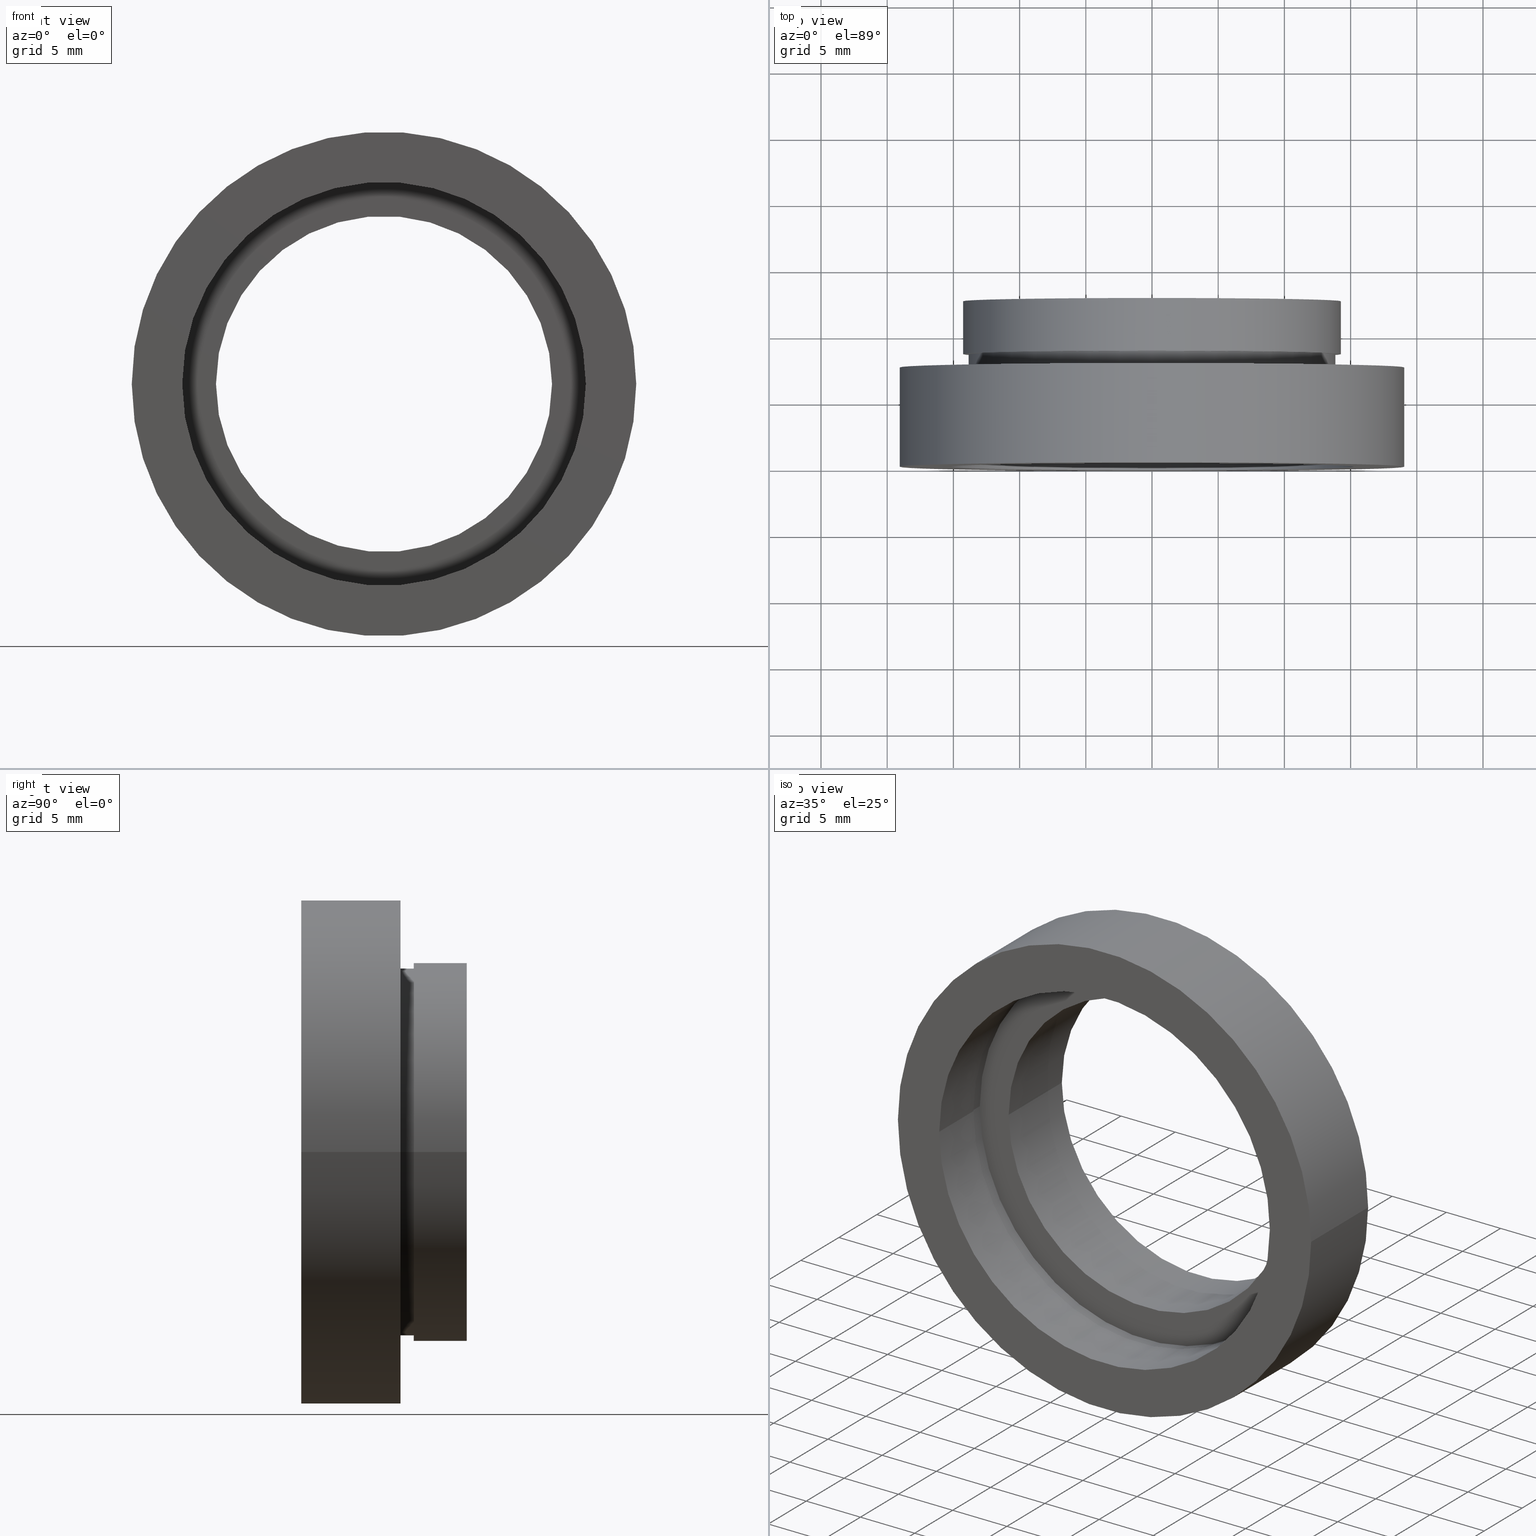
[diagram: canonical four-view strip — front | top / right | iso, engineering-drawing reading convention]
A machine part, canonical four-view strip (front | top / right | iso — engineering-drawing reading convention). The complete STEP part file that produces these views, byte-faithful:
ISO-10303-21;
HEADER;
FILE_DESCRIPTION (( 'STEP AP214' ),
    '1' );
FILE_NAME ('504109.STEP',
    '2019-10-08T05:56:51',
    ( '' ),
    ( '' ),
    'SwSTEP 2.0',
    'SolidWorks 2016',
    '' );
FILE_SCHEMA (( 'AUTOMOTIVE_DESIGN' ));
ENDSEC;

DATA;
#1 = DIRECTION ( 'NONE',  ( -1.224646799147351000E-016, 1.000000000000000000, -0.0000000000000000000 ) ) ;
#2 = DIRECTION ( 'NONE',  ( 1.000000000000000000, 1.224646799147351000E-016, 0.0000000000000000000 ) ) ;
#3 = VERTEX_POINT ( 'NONE', #363 ) ;
#4 = ORIENTED_EDGE ( 'NONE', *, *, #623, .F. ) ;
#5 = CARTESIAN_POINT ( 'NONE',  ( 19.05000000000000400, -1.136494799577910300E-015, 2.332952152375708400E-015 ) ) ;
#6 = AXIS2_PLACEMENT_3D ( 'NONE', #348, #58, #538 ) ;
#7 = EDGE_CURVE ( 'NONE', #541, #36, #599, .T. ) ;
#8 = CIRCLE ( 'NONE', #232, 12.68999999999999600 ) ;
#9 = DIRECTION ( 'NONE',  ( -1.000000000000000000, -1.130113013665672600E-016, 0.0000000000000000000 ) ) ;
#10 = DIRECTION ( 'NONE',  ( -1.224646799147351000E-016, 1.000000000000000000, -0.0000000000000000000 ) ) ;
#11 = EDGE_LOOP ( 'NONE', ( #281, #497, #287, #322 ) ) ;
#12 = CIRCLE ( 'NONE', #345, 15.34999999999999800 ) ;
#13 = CARTESIAN_POINT ( 'NONE',  ( 2.067940818438636500E-015, -3.469446951953614200E-015, 0.0000000000000000000 ) ) ;
#14 = ORIENTED_EDGE ( 'NONE', *, *, #306, .T. ) ;
#15 = DIRECTION ( 'NONE',  ( -1.000000000000000000, -1.224646799147351000E-016, 0.0000000000000000000 ) ) ;
#16 = MECHANICAL_DESIGN_GEOMETRIC_PRESENTATION_REPRESENTATION (  '', ( #262 ), #291 ) ;
#17 = DIRECTION ( 'NONE',  ( -1.224646799147351000E-016, 1.000000000000000000, -0.0000000000000000000 ) ) ;
#18 = MECHANICAL_DESIGN_GEOMETRIC_PRESENTATION_REPRESENTATION (  '', ( #417 ), #117 ) ;
#19 = ORIENTED_EDGE ( 'NONE', *, *, #420, .T. ) ;
#20 = CYLINDRICAL_SURFACE ( 'NONE', #123, 15.23999999999999800 ) ;
#21 =( LENGTH_UNIT ( ) NAMED_UNIT ( * ) SI_UNIT ( .MILLI., .METRE. ) );
#22 = CIRCLE ( 'NONE', #351, 15.24000000000000000 ) ;
#23 = CIRCLE ( 'NONE', #437, 14.26000000000000200 ) ;
#24 = DIRECTION ( 'NONE',  ( -1.224646799147351000E-016, 1.000000000000000000, -0.0000000000000000000 ) ) ;
#25 = MECHANICAL_DESIGN_GEOMETRIC_PRESENTATION_REPRESENTATION (  '', ( #511 ), #570 ) ;
#26 = EDGE_LOOP ( 'NONE', ( #434, #418 ) ) ;
#27 = LINE ( 'NONE', #118, #107 ) ;
#28 = DIRECTION ( 'NONE',  ( -1.224646799147351000E-016, 1.000000000000000000, -0.0000000000000000000 ) ) ;
#29 = ORIENTED_EDGE ( 'NONE', *, *, #463, .T. ) ;
#30 = EDGE_CURVE ( 'NONE', #423, #541, #521, .T. ) ;
#31 = ORIENTED_EDGE ( 'NONE', *, *, #306, .F. ) ;
#32 = CYLINDRICAL_SURFACE ( 'NONE', #153, 19.05000000000000400 ) ;
#33 = DIRECTION ( 'NONE',  ( -1.000000000000000000, -1.130113013665672600E-016, 0.0000000000000000000 ) ) ;
#34 =( NAMED_UNIT ( * ) PLANE_ANGLE_UNIT ( ) SI_UNIT ( $, .RADIAN. ) );
#35 = EDGE_CURVE ( 'NONE', #177, #188, #155, .T. ) ;
#36 = VERTEX_POINT ( 'NONE', #229 ) ;
#37 = LINE ( 'NONE', #116, #48 ) ;
#38 = FILL_AREA_STYLE_COLOUR ( '', #221 ) ;
#39 = ORIENTED_EDGE ( 'NONE', *, *, #354, .F. ) ;
#40 =( NAMED_UNIT ( * ) PLANE_ANGLE_UNIT ( ) SI_UNIT ( $, .RADIAN. ) );
#41 = DIRECTION ( 'NONE',  ( -1.224646799147351000E-016, 1.000000000000000000, 0.0000000000000000000 ) ) ;
#42 = CARTESIAN_POINT ( 'NONE',  ( -12.69000000000000000, 12.49999999999999500, 0.0000000000000000000 ) ) ;
#43 = UNCERTAINTY_MEASURE_WITH_UNIT (LENGTH_MEASURE( 1.000000000000000100E-005 ), #233, 'distance_accuracy_value', 'NONE');
#44 =( LENGTH_UNIT ( ) NAMED_UNIT ( * ) SI_UNIT ( .MILLI., .METRE. ) );
#45 = AXIS2_PLACEMENT_3D ( 'NONE', #249, #41, #380 ) ;
#46 =( NAMED_UNIT ( * ) SI_UNIT ( $, .STERADIAN. ) SOLID_ANGLE_UNIT ( ) );
#47 = DIRECTION ( 'NONE',  ( -1.224646799147351000E-016, 1.000000000000000000, -0.0000000000000000000 ) ) ;
#48 = VECTOR ( 'NONE', #218, 1000.000000000000000 ) ;
#49 = DIRECTION ( 'NONE',  ( -1.000000000000000000, -1.130113013665672600E-016, 0.0000000000000000000 ) ) ;
#50 = CIRCLE ( 'NONE', #572, 15.23999999999999700 ) ;
#51 = CARTESIAN_POINT ( 'NONE',  ( 13.85000000000000100, 7.500000000000000000, 1.696135816819084000E-015 ) ) ;
#52 = STYLED_ITEM ( 'NONE', ( #525 ), #505 ) ;
#53 = DIRECTION ( 'NONE',  ( -1.000000000000000000, -1.216496126210944500E-016, 0.0000000000000000000 ) ) ;
#54 = CARTESIAN_POINT ( 'NONE',  ( 0.0000000000000000000, 16.88601823708207700, 0.0000000000000000000 ) ) ;
#55 = ORIENTED_EDGE ( 'NONE', *, *, #564, .F. ) ;
#56 = CIRCLE ( 'NONE', #594, 12.68999999999999600 ) ;
#57 = ORIENTED_EDGE ( 'NONE', *, *, #597, .T. ) ;
#58 = DIRECTION ( 'NONE',  ( -1.224646799147351000E-016, 1.000000000000000000, -0.0000000000000000000 ) ) ;
#59 = CIRCLE ( 'NONE', #513, 15.24000000000000000 ) ;
#60 = DIRECTION ( 'NONE',  ( 1.000000000000000000, 1.224646799147351000E-016, 0.0000000000000000000 ) ) ;
#61 = EDGE_CURVE ( 'NONE', #255, #68, #8, .T. ) ;
#62 = ORIENTED_EDGE ( 'NONE', *, *, #296, .F. ) ;
#63 = CARTESIAN_POINT ( 'NONE',  ( 13.85000000000000100, 7.499999999999999100, 0.0000000000000000000 ) ) ;
#64 = ADVANCED_FACE ( 'NONE', ( #274, #91 ), #127, .F. ) ;
#65 = CARTESIAN_POINT ( 'NONE',  ( -15.23999999999999800, -5.335808673854176800E-015, 0.0000000000000000000 ) ) ;
#66 = ADVANCED_FACE ( 'NONE', ( #208 ), #75, .T. ) ;
#67 = CARTESIAN_POINT ( 'NONE',  ( -13.84999999999999800, 7.499999999999996400, 0.0000000000000000000 ) ) ;
#68 = VERTEX_POINT ( 'NONE', #607 ) ;
#69 = ADVANCED_FACE ( 'NONE', ( #411 ), #96, .T. ) ;
#70 = EDGE_CURVE ( 'NONE', #474, #518, #22, .T. ) ;
#71 = SURFACE_STYLE_FILL_AREA ( #84 ) ;
#72 = EDGE_LOOP ( 'NONE', ( #324, #223, #158, #565 ) ) ;
#73 = CARTESIAN_POINT ( 'NONE',  ( 13.85000000000000000, 16.88601823708207700, 1.696135816819084000E-015 ) ) ;
#74 = EDGE_CURVE ( 'NONE', #518, #431, #465, .T. ) ;
#75 = CYLINDRICAL_SURFACE ( 'NONE', #402, 14.26000000000000200 ) ;
#76 = FACE_OUTER_BOUND ( 'NONE', #72, .T. ) ;
#77 = LINE ( 'NONE', #567, #282 ) ;
#78 = MECHANICAL_DESIGN_GEOMETRIC_PRESENTATION_REPRESENTATION (  '', ( #605 ), #414 ) ;
#79 = SURFACE_STYLE_USAGE ( .BOTH. , #608 ) ;
#80 = ORIENTED_EDGE ( 'NONE', *, *, #61, .F. ) ;
#81 = AXIS2_PLACEMENT_3D ( 'NONE', #529, #485, #243 ) ;
#82 =( NAMED_UNIT ( * ) SI_UNIT ( $, .STERADIAN. ) SOLID_ANGLE_UNIT ( ) );
#83 = ORIENTED_EDGE ( 'NONE', *, *, #296, .T. ) ;
#84 = FILL_AREA_STYLE ('',( #368 ) ) ;
#85 = CIRCLE ( 'NONE', #483, 13.85000000000000000 ) ;
#86 = ORIENTED_EDGE ( 'NONE', *, *, #564, .T. ) ;
#87 = CARTESIAN_POINT ( 'NONE',  ( 1.149455719078123100E-015, 7.499999999999996400, 0.0000000000000000000 ) ) ;
#88 = MECHANICAL_DESIGN_GEOMETRIC_PRESENTATION_REPRESENTATION (  '', ( #52 ), #331 ) ;
#89 = CARTESIAN_POINT ( 'NONE',  ( 14.26000000000000500, 8.500000000000000000, 1.746346335584126200E-015 ) ) ;
#90 = DIRECTION ( 'NONE',  ( -1.224646799147351000E-016, 1.000000000000000000, -0.0000000000000000000 ) ) ;
#91 = FACE_OUTER_BOUND ( 'NONE', #409, .T. ) ;
#92 = DIRECTION ( 'NONE',  ( -1.224646799147351000E-016, 1.000000000000000000, -0.0000000000000000000 ) ) ;
#93 = CARTESIAN_POINT ( 'NONE',  ( 0.0000000000000000000, 16.88601823708207700, 0.0000000000000000000 ) ) ;
#94 = LINE ( 'NONE', #618, #586 ) ;
#95 = DIRECTION ( 'NONE',  ( -1.000000000000000000, 0.0000000000000000000, 0.0000000000000000000 ) ) ;
#96 = CYLINDRICAL_SURFACE ( 'NONE', #310, 14.26000000000000200 ) ;
#97 = EDGE_LOOP ( 'NONE', ( #80, #29, #57, #134 ) ) ;
#98 = EDGE_CURVE ( 'NONE', #431, #190, #50, .T. ) ;
#99 = DIRECTION ( 'NONE',  ( -1.224646799147351000E-016, 1.000000000000000000, -0.0000000000000000000 ) ) ;
#100 = DIRECTION ( 'NONE',  ( -1.224646799147351000E-016, 1.000000000000000000, -0.0000000000000000000 ) ) ;
#101 = CARTESIAN_POINT ( 'NONE',  ( 0.0000000000000000000, 0.0000000000000000000, 0.0000000000000000000 ) ) ;
#102 = DIRECTION ( 'NONE',  ( -1.224646799147351000E-016, 1.000000000000000000, -0.0000000000000000000 ) ) ;
#103 = CARTESIAN_POINT ( 'NONE',  ( -13.85000000000000000, 16.88601823708207700, 0.0000000000000000000 ) ) ;
#104 = EDGE_LOOP ( 'NONE', ( #83, #86, #553, #425 ) ) ;
#105 = ORIENTED_EDGE ( 'NONE', *, *, #588, .T. ) ;
#106 = CARTESIAN_POINT ( 'NONE',  ( 1.394385078907593200E-015, 5.499999999999996400, 0.0000000000000000000 ) ) ;
#107 = VECTOR ( 'NONE', #359, 1000.000000000000000 ) ;
#108 = SURFACE_STYLE_USAGE ( .BOTH. , #397 ) ;
#109 = EDGE_CURVE ( 'NONE', #318, #150, #602, .T. ) ;
#110 = FACE_OUTER_BOUND ( 'NONE', #396, .T. ) ;
#111 =( NAMED_UNIT ( * ) SI_UNIT ( $, .STERADIAN. ) SOLID_ANGLE_UNIT ( ) );
#112 = FACE_BOUND ( 'NONE', #367, .T. ) ;
#113 = LINE ( 'NONE', #193, #579 ) ;
#114 = STYLED_ITEM ( 'NONE', ( #394 ), #69 ) ;
#115 = UNCERTAINTY_MEASURE_WITH_UNIT (LENGTH_MEASURE( 1.000000000000000100E-005 ), #21, 'distance_accuracy_value', 'NONE');
#116 = CARTESIAN_POINT ( 'NONE',  ( -15.23999999999999800, 16.88601823708207300, 0.0000000000000000000 ) ) ;
#117 =( GEOMETRIC_REPRESENTATION_CONTEXT ( 3 ) GLOBAL_UNCERTAINTY_ASSIGNED_CONTEXT ( ( #250 ) ) GLOBAL_UNIT_ASSIGNED_CONTEXT ( ( #495, #595, #458 ) ) REPRESENTATION_CONTEXT ( 'NONE', 'WORKASPACE' ) );
#118 = CARTESIAN_POINT ( 'NONE',  ( -12.68999999999999800, 16.88601823708207700, 0.0000000000000000000 ) ) ;
#119 = VERTEX_POINT ( 'NONE', #372 ) ;
#120 = PRESENTATION_STYLE_ASSIGNMENT (( #169 ) ) ;
#121 =( NAMED_UNIT ( * ) PLANE_ANGLE_UNIT ( ) SI_UNIT ( $, .RADIAN. ) );
#122 = DIRECTION ( 'NONE',  ( -1.000000000000000000, -2.276539994720219300E-016, 0.0000000000000000000 ) ) ;
#123 = AXIS2_PLACEMENT_3D ( 'NONE', #549, #24, #122 ) ;
#124 = VERTEX_POINT ( 'NONE', #563 ) ;
#125 = LINE ( 'NONE', #266, #230 ) ;
#126 = CIRCLE ( 'NONE', #181, 13.85000000000000000 ) ;
#127 = PLANE ( 'NONE',  #163 ) ;
#128 = EDGE_CURVE ( 'NONE', #326, #589, #569, .T. ) ;
#129 =( NAMED_UNIT ( * ) PLANE_ANGLE_UNIT ( ) SI_UNIT ( $, .RADIAN. ) );
#130 = UNCERTAINTY_MEASURE_WITH_UNIT (LENGTH_MEASURE( 1.000000000000000100E-005 ), #286, 'distance_accuracy_value', 'NONE');
#131 = DIRECTION ( 'NONE',  ( -1.000000000000000000, -1.224646799147350700E-016, 0.0000000000000000000 ) ) ;
#132 = ORIENTED_EDGE ( 'NONE', *, *, #346, .F. ) ;
#133 = CIRCLE ( 'NONE', #186, 19.05000000000000100 ) ;
#134 = ORIENTED_EDGE ( 'NONE', *, *, #430, .F. ) ;
#135 = SURFACE_STYLE_FILL_AREA ( #189 ) ;
#136 = DIRECTION ( 'NONE',  ( -1.000000000000000000, -1.365923996832131400E-016, 0.0000000000000000000 ) ) ;
#137 =( NAMED_UNIT ( * ) PLANE_ANGLE_UNIT ( ) SI_UNIT ( $, .RADIAN. ) );
#138 = ORIENTED_EDGE ( 'NONE', *, *, #386, .T. ) ;
#139 = CARTESIAN_POINT ( 'NONE',  ( 13.85000000000000100, 8.500000000000000000, 1.696135816819084000E-015 ) ) ;
#140 = CYLINDRICAL_SURFACE ( 'NONE', #267, 12.68999999999999800 ) ;
#141 = EDGE_CURVE ( 'NONE', #150, #318, #228, .T. ) ;
#142 = CIRCLE ( 'NONE', #373, 13.85000000000000000 ) ;
#143 =( NAMED_UNIT ( * ) SI_UNIT ( $, .STERADIAN. ) SOLID_ANGLE_UNIT ( ) );
#144 = ORIENTED_EDGE ( 'NONE', *, *, #277, .F. ) ;
#145 = DIRECTION ( 'NONE',  ( -1.224646799147351000E-016, 1.000000000000000000, -0.0000000000000000000 ) ) ;
#146 = DIRECTION ( 'NONE',  ( -1.000000000000000000, -1.224646799147350700E-016, 0.0000000000000000000 ) ) ;
#147 = PRESENTATION_LAYER_ASSIGNMENT (  '', '', ( #262 ) ) ;
#148 = CARTESIAN_POINT ( 'NONE',  ( 5.371323195044474300E-016, 12.49999999999999600, 0.0000000000000000000 ) ) ;
#149 = DIRECTION ( 'NONE',  ( -1.224646799147351000E-016, 1.000000000000000000, -0.0000000000000000000 ) ) ;
#150 = VERTEX_POINT ( 'NONE', #280 ) ;
#151 = CIRCLE ( 'NONE', #522, 12.69000000000000000 ) ;
#152 = FILL_AREA_STYLE_COLOUR ( '', #222 ) ;
#153 = AXIS2_PLACEMENT_3D ( 'NONE', #432, #201, #571 ) ;
#154 = PRESENTATION_STYLE_ASSIGNMENT (( #108 ) ) ;
#155 = LINE ( 'NONE', #73, #300 ) ;
#156 = DIRECTION ( 'NONE',  ( -1.000000000000000000, -1.252507924893001600E-016, 0.0000000000000000000 ) ) ;
#157 = DIRECTION ( 'NONE',  ( -1.224646799147351000E-016, 1.000000000000000000, -0.0000000000000000000 ) ) ;
#158 = ORIENTED_EDGE ( 'NONE', *, *, #346, .T. ) ;
#159 = FACE_OUTER_BOUND ( 'NONE', #235, .T. ) ;
#160 = PRODUCT_DEFINITION ( 'δ֪', '', #227, #610 ) ;
#161 = FACE_OUTER_BOUND ( 'NONE', #270, .T. ) ;
#162 = SURFACE_SIDE_STYLE ('',( #360 ) ) ;
#163 = AXIS2_PLACEMENT_3D ( 'NONE', #415, #376, #523 ) ;
#164 = CLOSED_SHELL ( 'NONE', ( #314, #546, #69, #268, #404, #505, #456, #407, #64, #172, #508, #499, #271, #66, #225, #213, #462, #276 ) ) ;
#165 = CARTESIAN_POINT ( 'NONE',  ( 15.35000000000000000, 4.499999999999999100, 1.879832836691187100E-015 ) ) ;
#166 = EDGE_CURVE ( 'NONE', #518, #474, #59, .T. ) ;
#167 = EDGE_LOOP ( 'NONE', ( #62, #31 ) ) ;
#168 = COLOUR_RGB ( '',1.000000000000000000, 1.000000000000000000, 1.000000000000000000 ) ;
#169 = SURFACE_STYLE_USAGE ( .BOTH. , #455 ) ;
#170 = CARTESIAN_POINT ( 'NONE',  ( 5.371323195044474300E-016, 12.49999999999999600, 0.0000000000000000000 ) ) ;
#171 = SHAPE_DEFINITION_REPRESENTATION ( #294, #421 ) ;
#172 = ADVANCED_FACE ( 'NONE', ( #526 ), #490, .F. ) ;
#173 = PLANE ( 'NONE',  #385 ) ;
#174 = ORIENTED_EDGE ( 'NONE', *, *, #74, .T. ) ;
#175 = FACE_BOUND ( 'NONE', #388, .T. ) ;
#176 = DIRECTION ( 'NONE',  ( -1.224646799147351000E-016, 1.000000000000000000, 0.0000000000000000000 ) ) ;
#177 = VERTEX_POINT ( 'NONE', #51 ) ;
#178 = EDGE_CURVE ( 'NONE', #589, #326, #216, .T. ) ;
#179 = CARTESIAN_POINT ( 'NONE',  ( -14.26000000000000200, 16.88601823708207300, 0.0000000000000000000 ) ) ;
#180 = DIRECTION ( 'NONE',  ( -1.224646799147351000E-016, 1.000000000000000000, -0.0000000000000000000 ) ) ;
#181 = AXIS2_PLACEMENT_3D ( 'NONE', #240, #435, #335 ) ;
#182 = UNCERTAINTY_MEASURE_WITH_UNIT (LENGTH_MEASURE( 1.000000000000000100E-005 ), #543, 'distance_accuracy_value', 'NONE');
#183 = DIRECTION ( 'NONE',  ( -1.224646799147351000E-016, 1.000000000000000000, -0.0000000000000000000 ) ) ;
#184 = LINE ( 'NONE', #103, #562 ) ;
#185 = DIRECTION ( 'NONE',  ( -1.000000000000000000, -1.130113013665672600E-016, 0.0000000000000000000 ) ) ;
#186 = AXIS2_PLACEMENT_3D ( 'NONE', #13, #540, #261 ) ;
#187 = CARTESIAN_POINT ( 'NONE',  ( 15.23999999999999800, 16.88601823708208000, 1.866361721900565800E-015 ) ) ;
#188 = VERTEX_POINT ( 'NONE', #139 ) ;
#189 = FILL_AREA_STYLE ('',( #506 ) ) ;
#190 = VERTEX_POINT ( 'NONE', #293 ) ;
#191 = AXIS2_PLACEMENT_3D ( 'NONE', #461, #176, #507 ) ;
#192 = APPLICATION_PROTOCOL_DEFINITION ( 'draft international standard', 'automotive_design', 1998, #574 ) ;
#193 = CARTESIAN_POINT ( 'NONE',  ( 15.34999999999999800, 16.88601823708208000, 1.879832836691187100E-015 ) ) ;
#194 = AXIS2_PLACEMENT_3D ( 'NONE', #620, #47, #202 ) ;
#195 = APPLICATION_PROTOCOL_DEFINITION ( 'draft international standard', 'automotive_design', 1998, #248 ) ;
#196 = CARTESIAN_POINT ( 'NONE',  ( 12.69000000000000000, 12.50000000000000000, 0.0000000000000000000 ) ) ;
#197 = VERTEX_POINT ( 'NONE', #384 ) ;
#198 = AXIS2_PLACEMENT_3D ( 'NONE', #321, #556, #410 ) ;
#199 = ORIENTED_EDGE ( 'NONE', *, *, #559, .T. ) ;
#200 = CYLINDRICAL_SURFACE ( 'NONE', #247, 12.68999999999999800 ) ;
#201 = DIRECTION ( 'NONE',  ( -1.224646799147351000E-016, 1.000000000000000000, -0.0000000000000000000 ) ) ;
#202 = DIRECTION ( 'NONE',  ( -1.000000000000000000, -1.365923996832131400E-016, 0.0000000000000000000 ) ) ;
#203 = DIRECTION ( 'NONE',  ( -1.224646799147351000E-016, 1.000000000000000000, -0.0000000000000000000 ) ) ;
#204 = EDGE_LOOP ( 'NONE', ( #539, #290 ) ) ;
#205 = DIRECTION ( 'NONE',  ( -1.224646799147351000E-016, 1.000000000000000000, -0.0000000000000000000 ) ) ;
#206 = FACE_OUTER_BOUND ( 'NONE', #305, .T. ) ;
#207 = EDGE_LOOP ( 'NONE', ( #220, #174, #440, #568 ) ) ;
#208 = FACE_OUTER_BOUND ( 'NONE', #352, .T. ) ;
#209 = FILL_AREA_STYLE ('',( #350 ) ) ;
#210 = EDGE_CURVE ( 'NONE', #318, #480, #113, .T. ) ;
#211 = CARTESIAN_POINT ( 'NONE',  ( 1.026991039163387700E-015, 8.499999999999998200, 0.0000000000000000000 ) ) ;
#212 = ORIENTED_EDGE ( 'NONE', *, *, #327, .F. ) ;
#213 = ADVANCED_FACE ( 'NONE', ( #76 ), #366, .T. ) ;
#214 = CARTESIAN_POINT ( 'NONE',  ( 19.05000000000000400, -4.336808689942023700E-016, 0.0000000000000000000 ) ) ;
#215 = PRESENTATION_LAYER_ASSIGNMENT (  '', '', ( #52 ) ) ;
#216 = CIRCLE ( 'NONE', #194, 19.05000000000000400 ) ;
#217 = ORIENTED_EDGE ( 'NONE', *, *, #623, .T. ) ;
#218 = DIRECTION ( 'NONE',  ( -1.224646799147351000E-016, 1.000000000000000000, -0.0000000000000000000 ) ) ;
#219 = STYLED_ITEM ( 'NONE', ( #395 ), #407 ) ;
#220 = ORIENTED_EDGE ( 'NONE', *, *, #166, .F. ) ;
#221 = COLOUR_RGB ( '',1.000000000000000000, 1.000000000000000000, 1.000000000000000000 ) ;
#222 = COLOUR_RGB ( '',1.000000000000000000, 1.000000000000000000, 1.000000000000000000 ) ;
#223 = ORIENTED_EDGE ( 'NONE', *, *, #241, .T. ) ;
#224 = DIRECTION ( 'NONE',  ( -1.000000000000000000, -1.252507924893001600E-016, 0.0000000000000000000 ) ) ;
#225 = ADVANCED_FACE ( 'NONE', ( #244, #112 ), #482, .F. ) ;
#226 = CARTESIAN_POINT ( 'NONE',  ( 0.0000000000000000000, 16.88601823708207700, 0.0000000000000000000 ) ) ;
#227 = PRODUCT_DEFINITION_FORMATION_WITH_SPECIFIED_SOURCE ( '�κ�', '', #364, .NOT_KNOWN. ) ;
#228 = CIRCLE ( 'NONE', #479, 15.34999999999999800 ) ;
#229 = CARTESIAN_POINT ( 'NONE',  ( 14.26000000000000200, 12.50000000000000000, 1.746346335584125800E-015 ) ) ;
#230 = VECTOR ( 'NONE', #590, 1000.000000000000000 ) ;
#231 = ORIENTED_EDGE ( 'NONE', *, *, #354, .T. ) ;
#232 = AXIS2_PLACEMENT_3D ( 'NONE', #464, #180, #614 ) ;
#233 =( LENGTH_UNIT ( ) NAMED_UNIT ( * ) SI_UNIT ( .MILLI., .METRE. ) );
#234 = DIRECTION ( 'NONE',  ( -1.224646799147351000E-016, 1.000000000000000000, -0.0000000000000000000 ) ) ;
#235 = EDGE_LOOP ( 'NONE', ( #452, #333, #413, #132 ) ) ;
#236 = ORIENTED_EDGE ( 'NONE', *, *, #74, .F. ) ;
#237 = CARTESIAN_POINT ( 'NONE',  ( 1.516849758822328300E-015, 4.499999999999997300, 0.0000000000000000000 ) ) ;
#238 = CARTESIAN_POINT ( 'NONE',  ( 2.067940818438636500E-015, -3.469446951953614200E-015, 0.0000000000000000000 ) ) ;
#239 = PRESENTATION_STYLE_ASSIGNMENT (( #422 ) ) ;
#240 = CARTESIAN_POINT ( 'NONE',  ( 1.149455719078122700E-015, 7.499999999999998200, 0.0000000000000000000 ) ) ;
#241 = EDGE_CURVE ( 'NONE', #177, #443, #126, .T. ) ;
#242 = FACE_BOUND ( 'NONE', #308, .T. ) ;
#243 = DIRECTION ( 'NONE',  ( -1.000000000000000000, -1.216496126210944500E-016, 0.0000000000000000000 ) ) ;
#244 = FACE_OUTER_BOUND ( 'NONE', #204, .T. ) ;
#245 =( LENGTH_UNIT ( ) NAMED_UNIT ( * ) SI_UNIT ( .MILLI., .METRE. ) );
#246 = SURFACE_STYLE_USAGE ( .BOTH. , #477 ) ;
#247 = AXIS2_PLACEMENT_3D ( 'NONE', #429, #1, #341 ) ;
#248 = APPLICATION_CONTEXT ( 'automotive_design' ) ;
#249 = CARTESIAN_POINT ( 'NONE',  ( 14.26000000000000300, 8.500000000000000000, 0.0000000000000000000 ) ) ;
#250 = UNCERTAINTY_MEASURE_WITH_UNIT (LENGTH_MEASURE( 1.000000000000000100E-005 ), #495, 'distance_accuracy_value', 'NONE');
#251 =( LENGTH_UNIT ( ) NAMED_UNIT ( * ) SI_UNIT ( .MILLI., .METRE. ) );
#252 = AXIS2_PLACEMENT_3D ( 'NONE', #446, #535, #390 ) ;
#253 = ORIENTED_EDGE ( 'NONE', *, *, #141, .F. ) ;
#254 = FACE_OUTER_BOUND ( 'NONE', #297, .T. ) ;
#255 = VERTEX_POINT ( 'NONE', #338 ) ;
#256 = DIRECTION ( 'NONE',  ( -1.224646799147351000E-016, 1.000000000000000000, -0.0000000000000000000 ) ) ;
#257 = CARTESIAN_POINT ( 'NONE',  ( 0.0000000000000000000, 16.88601823708207700, 0.0000000000000000000 ) ) ;
#258 = PRODUCT_RELATED_PRODUCT_CATEGORY ( 'part', '', ( #364 ) ) ;
#259 = ORIENTED_EDGE ( 'NONE', *, *, #61, .T. ) ;
#260 = VECTOR ( 'NONE', #307, 1000.000000000000000 ) ;
#261 = DIRECTION ( 'NONE',  ( -1.000000000000000000, -1.224646799147351200E-016, 0.0000000000000000000 ) ) ;
#262 = STYLED_ITEM ( 'NONE', ( #492 ), #268 ) ;
#263 = COLOUR_RGB ( '',1.000000000000000000, 1.000000000000000000, 1.000000000000000000 ) ;
#264 = ORIENTED_EDGE ( 'NONE', *, *, #597, .F. ) ;
#265 = CARTESIAN_POINT ( 'NONE',  ( 15.23999999999999800, 4.499999999999999100, 1.866361721900565400E-015 ) ) ;
#266 = CARTESIAN_POINT ( 'NONE',  ( 12.68999999999999800, 16.88601823708207700, 1.554076788117991100E-015 ) ) ;
#267 = AXIS2_PLACEMENT_3D ( 'NONE', #591, #17, #405 ) ;
#268 = ADVANCED_FACE ( 'NONE', ( #604 ), #200, .F. ) ;
#269 = DIRECTION ( 'NONE',  ( -1.000000000000000000, -1.367000375080226200E-016, 0.0000000000000000000 ) ) ;
#270 = EDGE_LOOP ( 'NONE', ( #55, #14, #105, #612 ) ) ;
#271 = ADVANCED_FACE ( 'NONE', ( #566, #500 ), #288, .F. ) ;
#272 = ORIENTED_EDGE ( 'NONE', *, *, #438, .T. ) ;
#273 = FILL_AREA_STYLE ('',( #309 ) ) ;
#274 = FACE_BOUND ( 'NONE', #26, .T. ) ;
#275 = LINE ( 'NONE', #494, #260 ) ;
#276 = ADVANCED_FACE ( 'NONE', ( #161 ), #32, .T. ) ;
#277 = EDGE_CURVE ( 'NONE', #36, #541, #441, .T. ) ;
#278 = DIRECTION ( 'NONE',  ( -1.000000000000000000, -2.432992252421889000E-016, 0.0000000000000000000 ) ) ;
#279 = AXIS2_PLACEMENT_3D ( 'NONE', #196, #383, #2 ) ;
#280 = CARTESIAN_POINT ( 'NONE',  ( -15.34999999999999600, 4.499999999999995600, 0.0000000000000000000 ) ) ;
#281 = ORIENTED_EDGE ( 'NONE', *, *, #473, .T. ) ;
#282 = VECTOR ( 'NONE', #616, 1000.000000000000000 ) ;
#283 = PRESENTATION_LAYER_ASSIGNMENT (  '', '', ( #219 ) ) ;
#284 = CARTESIAN_POINT ( 'NONE',  ( 0.0000000000000000000, 16.88601823708207700, 0.0000000000000000000 ) ) ;
#285 =( NAMED_UNIT ( * ) SI_UNIT ( $, .STERADIAN. ) SOLID_ANGLE_UNIT ( ) );
#286 =( LENGTH_UNIT ( ) NAMED_UNIT ( * ) SI_UNIT ( .MILLI., .METRE. ) );
#287 = ORIENTED_EDGE ( 'NONE', *, *, #7, .F. ) ;
#288 = PLANE ( 'NONE',  #279 ) ;
#289 = FACE_OUTER_BOUND ( 'NONE', #167, .T. ) ;
#290 = ORIENTED_EDGE ( 'NONE', *, *, #336, .F. ) ;
#291 =( GEOMETRIC_REPRESENTATION_CONTEXT ( 3 ) GLOBAL_UNCERTAINTY_ASSIGNED_CONTEXT ( ( #624 ) ) GLOBAL_UNIT_ASSIGNED_CONTEXT ( ( #44, #387, #575 ) ) REPRESENTATION_CONTEXT ( 'NONE', 'WORKASPACE' ) );
#292 = DIRECTION ( 'NONE',  ( -1.224646799147351000E-016, 1.000000000000000000, -0.0000000000000000000 ) ) ;
#293 = CARTESIAN_POINT ( 'NONE',  ( -15.23999999999999500, 4.499999999999995600, 0.0000000000000000000 ) ) ;
#294 = PRODUCT_DEFINITION_SHAPE ( 'NONE', 'NONE',  #160 ) ;
#295 = MANIFOLD_SOLID_BREP ( '��ת1', #164 ) ;
#296 = EDGE_CURVE ( 'NONE', #119, #347, #133, .T. ) ;
#297 = EDGE_LOOP ( 'NONE', ( #502, #573, #375, #357 ) ) ;
#298 = FACE_OUTER_BOUND ( 'NONE', #524, .T. ) ;
#299 = DIRECTION ( 'NONE',  ( -1.000000000000000000, -1.821231995776175000E-016, 0.0000000000000000000 ) ) ;
#300 = VECTOR ( 'NONE', #603, 1000.000000000000000 ) ;
#301 = AXIS2_PLACEMENT_3D ( 'NONE', #503, #99, #533 ) ;
#302 = ORIENTED_EDGE ( 'NONE', *, *, #398, .F. ) ;
#303 = FACE_BOUND ( 'NONE', #378, .T. ) ;
#304 = CARTESIAN_POINT ( 'NONE',  ( 1.026991039163387700E-015, 8.499999999999998200, 0.0000000000000000000 ) ) ;
#305 = EDGE_LOOP ( 'NONE', ( #236, #349, #389, #199 ) ) ;
#306 = EDGE_CURVE ( 'NONE', #347, #119, #374, .T. ) ;
#307 = DIRECTION ( 'NONE',  ( -1.224646799147351000E-016, 1.000000000000000000, -0.0000000000000000000 ) ) ;
#308 = EDGE_LOOP ( 'NONE', ( #466, #486 ) ) ;
#309 = FILL_AREA_STYLE_COLOUR ( '', #168 ) ;
#310 = AXIS2_PLACEMENT_3D ( 'NONE', #284, #328, #424 ) ;
#311 = EDGE_LOOP ( 'NONE', ( #516, #264 ) ) ;
#312 = FACE_OUTER_BOUND ( 'NONE', #104, .T. ) ;
#313 = FILL_AREA_STYLE ('',( #552 ) ) ;
#314 = ADVANCED_FACE ( 'NONE', ( #312 ), #412, .T. ) ;
#315 = MECHANICAL_DESIGN_GEOMETRIC_PRESENTATION_REPRESENTATION (  '', ( #406 ), #453 ) ;
#316 = SURFACE_SIDE_STYLE ('',( #449 ) ) ;
#317 = SURFACE_STYLE_USAGE ( .BOTH. , #316 ) ;
#318 = VERTEX_POINT ( 'NONE', #165 ) ;
#319 = DIRECTION ( 'NONE',  ( -1.000000000000000000, 0.0000000000000000000, 0.0000000000000000000 ) ) ;
#320 = SURFACE_STYLE_FILL_AREA ( #580 ) ;
#321 = CARTESIAN_POINT ( 'NONE',  ( 5.371323195044472300E-016, 12.49999999999999800, 0.0000000000000000000 ) ) ;
#322 = ORIENTED_EDGE ( 'NONE', *, *, #30, .F. ) ;
#323 = CARTESIAN_POINT ( 'NONE',  ( 15.24000000000000400, -1.603085230053050900E-015, 1.866361721900566200E-015 ) ) ;
#324 = ORIENTED_EDGE ( 'NONE', *, *, #35, .F. ) ;
#325 = AXIS2_PLACEMENT_3D ( 'NONE', #211, #545, #401 ) ;
#326 = VERTEX_POINT ( 'NONE', #439 ) ;
#327 = EDGE_CURVE ( 'NONE', #480, #3, #12, .T. ) ;
#328 = DIRECTION ( 'NONE',  ( -1.224646799147351000E-016, 1.000000000000000000, -0.0000000000000000000 ) ) ;
#329 = CARTESIAN_POINT ( 'NONE',  ( 0.0000000000000000000, 16.88601823708207700, 0.0000000000000000000 ) ) ;
#330 = ORIENTED_EDGE ( 'NONE', *, *, #128, .T. ) ;
#331 =( GEOMETRIC_REPRESENTATION_CONTEXT ( 3 ) GLOBAL_UNCERTAINTY_ASSIGNED_CONTEXT ( ( #115 ) ) GLOBAL_UNIT_ASSIGNED_CONTEXT ( ( #21, #356, #361 ) ) REPRESENTATION_CONTEXT ( 'NONE', 'WORKASPACE' ) );
#332 = COLOUR_RGB ( '',1.000000000000000000, 1.000000000000000000, 1.000000000000000000 ) ;
#333 = ORIENTED_EDGE ( 'NONE', *, *, #35, .T. ) ;
#334 = DIRECTION ( 'NONE',  ( -1.000000000000000000, -1.367000375080226200E-016, 0.0000000000000000000 ) ) ;
#335 = DIRECTION ( 'NONE',  ( -1.000000000000000000, -1.252507924893001600E-016, 0.0000000000000000000 ) ) ;
#336 = EDGE_CURVE ( 'NONE', #593, #423, #23, .T. ) ;
#337 = PRODUCT_CONTEXT ( 'NONE', #248, 'mechanical' ) ;
#338 = CARTESIAN_POINT ( 'NONE',  ( 12.68999999999999800, 5.499999999999998200, 1.554076788117991100E-015 ) ) ;
#339 = SURFACE_STYLE_FILL_AREA ( #427 ) ;
#340 = DIRECTION ( 'NONE',  ( 1.000000000000000000, 0.0000000000000000000, 0.0000000000000000000 ) ) ;
#341 = DIRECTION ( 'NONE',  ( -1.000000000000000000, 0.0000000000000000000, 0.0000000000000000000 ) ) ;
#342 =( GEOMETRIC_REPRESENTATION_CONTEXT ( 3 ) GLOBAL_UNCERTAINTY_ASSIGNED_CONTEXT ( ( #400 ) ) GLOBAL_UNIT_ASSIGNED_CONTEXT ( ( #416, #129, #82 ) ) REPRESENTATION_CONTEXT ( 'NONE', 'WORKASPACE' ) );
#343 = FILL_AREA_STYLE ('',( #617 ) ) ;
#344 = DIRECTION ( 'NONE',  ( -1.224646799147351000E-016, 1.000000000000000000, -0.0000000000000000000 ) ) ;
#345 = AXIS2_PLACEMENT_3D ( 'NONE', #106, #344, #9 ) ;
#346 = EDGE_CURVE ( 'NONE', #443, #197, #184, .T. ) ;
#347 = VERTEX_POINT ( 'NONE', #5 ) ;
#348 = CARTESIAN_POINT ( 'NONE',  ( 0.0000000000000000000, 16.88601823708207700, 0.0000000000000000000 ) ) ;
#349 = ORIENTED_EDGE ( 'NONE', *, *, #70, .F. ) ;
#350 = FILL_AREA_STYLE_COLOUR ( '', #332 ) ;
#351 = AXIS2_PLACEMENT_3D ( 'NONE', #467, #183, #131 ) ;
#352 = EDGE_LOOP ( 'NONE', ( #457, #371, #471, #144 ) ) ;
#353 =( GEOMETRIC_REPRESENTATION_CONTEXT ( 3 ) GLOBAL_UNCERTAINTY_ASSIGNED_CONTEXT ( ( #182 ) ) GLOBAL_UNIT_ASSIGNED_CONTEXT ( ( #543, #121, #450 ) ) REPRESENTATION_CONTEXT ( 'NONE', 'WORKASPACE' ) );
#354 = EDGE_CURVE ( 'NONE', #68, #255, #56, .T. ) ;
#355 = UNCERTAINTY_MEASURE_WITH_UNIT (LENGTH_MEASURE( 1.000000000000000100E-005 ), #245, 'distance_accuracy_value', 'NONE');
#356 =( NAMED_UNIT ( * ) PLANE_ANGLE_UNIT ( ) SI_UNIT ( $, .RADIAN. ) );
#357 = ORIENTED_EDGE ( 'NONE', *, *, #438, .F. ) ;
#358 = CIRCLE ( 'NONE', #555, 13.85000000000000000 ) ;
#359 = DIRECTION ( 'NONE',  ( -1.224646799147351000E-016, 1.000000000000000000, -0.0000000000000000000 ) ) ;
#360 = SURFACE_STYLE_FILL_AREA ( #209 ) ;
#361 =( NAMED_UNIT ( * ) SI_UNIT ( $, .STERADIAN. ) SOLID_ANGLE_UNIT ( ) );
#362 = PLANE ( 'NONE',  #191 ) ;
#363 = CARTESIAN_POINT ( 'NONE',  ( -15.34999999999999600, 5.499999999999994700, 0.0000000000000000000 ) ) ;
#364 = PRODUCT ( '504109', '504109', '', ( #337 ) ) ;
#365 = EDGE_CURVE ( 'NONE', #593, #36, #459, .T. ) ;
#366 = CYLINDRICAL_SURFACE ( 'NONE', #544, 13.85000000000000000 ) ;
#367 = EDGE_LOOP ( 'NONE', ( #561, #138 ) ) ;
#368 = FILL_AREA_STYLE_COLOUR ( '', #557 ) ;
#369 = AXIS2_PLACEMENT_3D ( 'NONE', #237, #469, #185 ) ;
#370 = DIRECTION ( 'NONE',  ( -1.224646799147351000E-016, 1.000000000000000000, -0.0000000000000000000 ) ) ;
#371 = ORIENTED_EDGE ( 'NONE', *, *, #336, .T. ) ;
#372 = CARTESIAN_POINT ( 'NONE',  ( -19.04999999999999700, -5.802399104329318300E-015, 0.0000000000000000000 ) ) ;
#373 = AXIS2_PLACEMENT_3D ( 'NONE', #489, #205, #585 ) ;
#374 = CIRCLE ( 'NONE', #252, 19.05000000000000100 ) ;
#375 = ORIENTED_EDGE ( 'NONE', *, *, #327, .T. ) ;
#376 = DIRECTION ( 'NONE',  ( 1.224646799147351000E-016, -1.000000000000000000, 0.0000000000000000000 ) ) ;
#377 = DIRECTION ( 'NONE',  ( 0.0000000000000000000, 0.0000000000000000000, 1.000000000000000000 ) ) ;
#378 = EDGE_LOOP ( 'NONE', ( #302, #528 ) ) ;
#379 = CIRCLE ( 'NONE', #325, 14.26000000000000200 ) ;
#380 = DIRECTION ( 'NONE',  ( -1.000000000000000000, -1.224646799147351000E-016, 0.0000000000000000000 ) ) ;
#381 = PRESENTATION_LAYER_ASSIGNMENT (  '', '', ( #605 ) ) ;
#382 = CYLINDRICAL_SURFACE ( 'NONE', #548, 15.23999999999999800 ) ;
#383 = DIRECTION ( 'NONE',  ( 1.224646799147351000E-016, -1.000000000000000000, 0.0000000000000000000 ) ) ;
#384 = CARTESIAN_POINT ( 'NONE',  ( -13.84999999999999800, 8.499999999999996400, 0.0000000000000000000 ) ) ;
#385 = AXIS2_PLACEMENT_3D ( 'NONE', #63, #399, #60 ) ;
#386 = EDGE_CURVE ( 'NONE', #188, #197, #85, .T. ) ;
#387 =( NAMED_UNIT ( * ) PLANE_ANGLE_UNIT ( ) SI_UNIT ( $, .RADIAN. ) );
#388 = EDGE_LOOP ( 'NONE', ( #231, #259 ) ) ;
#389 = ORIENTED_EDGE ( 'NONE', *, *, #504, .T. ) ;
#390 = DIRECTION ( 'NONE',  ( -1.000000000000000000, -1.224646799147351200E-016, 0.0000000000000000000 ) ) ;
#391 = AXIS2_PLACEMENT_3D ( 'NONE', #101, #377, #340 ) ;
#392 = CIRCLE ( 'NONE', #301, 15.23999999999999700 ) ;
#393 = DIRECTION ( 'NONE',  ( -1.224646799147351000E-016, 1.000000000000000000, -0.0000000000000000000 ) ) ;
#394 = PRESENTATION_STYLE_ASSIGNMENT (( #79 ) ) ;
#395 = PRESENTATION_STYLE_ASSIGNMENT (( #542 ) ) ;
#396 = EDGE_LOOP ( 'NONE', ( #509, #330 ) ) ;
#397 = SURFACE_SIDE_STYLE ('',( #320 ) ) ;
#398 = EDGE_CURVE ( 'NONE', #443, #177, #142, .T. ) ;
#399 = DIRECTION ( 'NONE',  ( 1.224646799147351000E-016, -1.000000000000000000, 0.0000000000000000000 ) ) ;
#400 = UNCERTAINTY_MEASURE_WITH_UNIT (LENGTH_MEASURE( 1.000000000000000100E-005 ), #416, 'distance_accuracy_value', 'NONE');
#401 = DIRECTION ( 'NONE',  ( -1.000000000000000000, -1.216496126210944500E-016, 0.0000000000000000000 ) ) ;
#402 = AXIS2_PLACEMENT_3D ( 'NONE', #329, #560, #278 ) ;
#403 = EDGE_LOOP ( 'NONE', ( #547, #253, #272, #217 ) ) ;
#404 = ADVANCED_FACE ( 'NONE', ( #254 ), #550, .F. ) ;
#405 = DIRECTION ( 'NONE',  ( -1.000000000000000000, 0.0000000000000000000, 0.0000000000000000000 ) ) ;
#406 = STYLED_ITEM ( 'NONE', ( #154 ), #295 ) ;
#407 = ADVANCED_FACE ( 'NONE', ( #206 ), #382, .F. ) ;
#408 = DIRECTION ( 'NONE',  ( -1.000000000000000000, -2.276539994720219300E-016, 0.0000000000000000000 ) ) ;
#409 = EDGE_LOOP ( 'NONE', ( #582, #488 ) ) ;
#410 = DIRECTION ( 'NONE',  ( -1.000000000000000000, -1.216496126210944500E-016, 0.0000000000000000000 ) ) ;
#411 = FACE_OUTER_BOUND ( 'NONE', #11, .T. ) ;
#412 = CYLINDRICAL_SURFACE ( 'NONE', #515, 19.05000000000000400 ) ;
#413 = ORIENTED_EDGE ( 'NONE', *, *, #530, .F. ) ;
#414 =( GEOMETRIC_REPRESENTATION_CONTEXT ( 3 ) GLOBAL_UNCERTAINTY_ASSIGNED_CONTEXT ( ( #43 ) ) GLOBAL_UNIT_ASSIGNED_CONTEXT ( ( #233, #34, #285 ) ) REPRESENTATION_CONTEXT ( 'NONE', 'WORKASPACE' ) );
#415 = CARTESIAN_POINT ( 'NONE',  ( 15.23999999999999800, 4.499999999999999100, 0.0000000000000000000 ) ) ;
#416 =( LENGTH_UNIT ( ) NAMED_UNIT ( * ) SI_UNIT ( .MILLI., .METRE. ) );
#417 = STYLED_ITEM ( 'NONE', ( #120 ), #499 ) ;
#418 = ORIENTED_EDGE ( 'NONE', *, *, #98, .F. ) ;
#419 = CIRCLE ( 'NONE', #584, 15.34999999999999800 ) ;
#420 = EDGE_CURVE ( 'NONE', #619, #124, #596, .T. ) ;
#421 = ADVANCED_BREP_SHAPE_REPRESENTATION ( '504109', ( #295, #391 ), #615 ) ;
#422 = SURFACE_STYLE_USAGE ( .BOTH. , #611 ) ;
#423 = VERTEX_POINT ( 'NONE', #454 ) ;
#424 = DIRECTION ( 'NONE',  ( -1.000000000000000000, -2.432992252421889000E-016, 0.0000000000000000000 ) ) ;
#425 = ORIENTED_EDGE ( 'NONE', *, *, #588, .F. ) ;
#426 = DIRECTION ( 'NONE',  ( -1.224646799147351000E-016, 1.000000000000000000, -0.0000000000000000000 ) ) ;
#427 = FILL_AREA_STYLE ('',( #38 ) ) ;
#428 = DIRECTION ( 'NONE',  ( -1.000000000000000000, -2.260226027331345300E-016, 0.0000000000000000000 ) ) ;
#429 = CARTESIAN_POINT ( 'NONE',  ( 0.0000000000000000000, 16.88601823708207700, 0.0000000000000000000 ) ) ;
#430 = EDGE_CURVE ( 'NONE', #68, #619, #27, .T. ) ;
#431 = VERTEX_POINT ( 'NONE', #265 ) ;
#432 = CARTESIAN_POINT ( 'NONE',  ( 0.0000000000000000000, 16.88601823708207700, 0.0000000000000000000 ) ) ;
#433 = MECHANICAL_DESIGN_GEOMETRIC_PRESENTATION_REPRESENTATION (  '', ( #114 ), #342 ) ;
#434 = ORIENTED_EDGE ( 'NONE', *, *, #559, .F. ) ;
#435 = DIRECTION ( 'NONE',  ( -1.224646799147351000E-016, 1.000000000000000000, -0.0000000000000000000 ) ) ;
#436 = DIRECTION ( 'NONE',  ( -1.000000000000000000, -1.367000375080226700E-016, 0.0000000000000000000 ) ) ;
#437 = AXIS2_PLACEMENT_3D ( 'NONE', #304, #256, #53 ) ;
#438 = EDGE_CURVE ( 'NONE', #150, #3, #275, .T. ) ;
#439 = CARTESIAN_POINT ( 'NONE',  ( 19.05000000000000400, 7.499999999999999100, 2.332952152375708400E-015 ) ) ;
#440 = ORIENTED_EDGE ( 'NONE', *, *, #98, .T. ) ;
#441 = CIRCLE ( 'NONE', #81, 14.26000000000000200 ) ;
#442 = CARTESIAN_POINT ( 'NONE',  ( 14.26000000000000200, 16.88601823708208000, 1.746346335584125800E-015 ) ) ;
#443 = VERTEX_POINT ( 'NONE', #67 ) ;
#444 = CARTESIAN_POINT ( 'NONE',  ( 1.394385078907593200E-015, 5.499999999999996400, 0.0000000000000000000 ) ) ;
#445 = AXIS2_PLACEMENT_3D ( 'NONE', #226, #554, #319 ) ;
#446 = CARTESIAN_POINT ( 'NONE',  ( 2.067940818438636500E-015, -3.469446951953614200E-015, 0.0000000000000000000 ) ) ;
#447 = AXIS2_PLACEMENT_3D ( 'NONE', #87, #426, #136 ) ;
#448 = EDGE_LOOP ( 'NONE', ( #512, #39, #491, #19 ) ) ;
#449 = SURFACE_STYLE_FILL_AREA ( #313 ) ;
#450 =( NAMED_UNIT ( * ) SI_UNIT ( $, .STERADIAN. ) SOLID_ANGLE_UNIT ( ) );
#451 = VECTOR ( 'NONE', #519, 1000.000000000000000 ) ;
#452 = ORIENTED_EDGE ( 'NONE', *, *, #398, .T. ) ;
#453 =( GEOMETRIC_REPRESENTATION_CONTEXT ( 3 ) GLOBAL_UNCERTAINTY_ASSIGNED_CONTEXT ( ( #534 ) ) GLOBAL_UNIT_ASSIGNED_CONTEXT ( ( #251, #581, #111 ) ) REPRESENTATION_CONTEXT ( 'NONE', 'WORKASPACE' ) );
#454 = CARTESIAN_POINT ( 'NONE',  ( -14.26000000000000000, 8.499999999999996400, 0.0000000000000000000 ) ) ;
#455 = SURFACE_SIDE_STYLE ('',( #621 ) ) ;
#456 = ADVANCED_FACE ( 'NONE', ( #289, #242 ), #551, .F. ) ;
#457 = ORIENTED_EDGE ( 'NONE', *, *, #365, .F. ) ;
#458 =( NAMED_UNIT ( * ) SI_UNIT ( $, .STERADIAN. ) SOLID_ANGLE_UNIT ( ) );
#459 = LINE ( 'NONE', #442, #527 ) ;
#460 = PRESENTATION_LAYER_ASSIGNMENT (  '', '', ( #511 ) ) ;
#461 = CARTESIAN_POINT ( 'NONE',  ( 12.68999999999999800, 5.499999999999999100, 0.0000000000000000000 ) ) ;
#462 = ADVANCED_FACE ( 'NONE', ( #303, #110 ), #173, .F. ) ;
#463 = EDGE_CURVE ( 'NONE', #255, #124, #125, .T. ) ;
#464 = CARTESIAN_POINT ( 'NONE',  ( 1.394385078907593200E-015, 5.499999999999996400, 0.0000000000000000000 ) ) ;
#465 = LINE ( 'NONE', #187, #451 ) ;
#466 = ORIENTED_EDGE ( 'NONE', *, *, #70, .T. ) ;
#467 = CARTESIAN_POINT ( 'NONE',  ( 2.067940818438636500E-015, -3.469446951953614200E-015, 0.0000000000000000000 ) ) ;
#468 = PRESENTATION_LAYER_ASSIGNMENT (  '', '', ( #114 ) ) ;
#469 = DIRECTION ( 'NONE',  ( -1.224646799147351000E-016, 1.000000000000000000, -0.0000000000000000000 ) ) ;
#470 = PRESENTATION_LAYER_ASSIGNMENT (  '', '', ( #406 ) ) ;
#471 = ORIENTED_EDGE ( 'NONE', *, *, #30, .T. ) ;
#472 = PRESENTATION_STYLE_ASSIGNMENT (( #476 ) ) ;
#473 = EDGE_CURVE ( 'NONE', #423, #593, #379, .T. ) ;
#474 = VERTEX_POINT ( 'NONE', #65 ) ;
#475 = VECTOR ( 'NONE', #601, 1000.000000000000000 ) ;
#476 = SURFACE_STYLE_USAGE ( .BOTH. , #576 ) ;
#477 = SURFACE_SIDE_STYLE ('',( #622 ) ) ;
#478 = COLOUR_RGB ( '',1.000000000000000000, 1.000000000000000000, 1.000000000000000000 ) ;
#479 = AXIS2_PLACEMENT_3D ( 'NONE', #517, #234, #33 ) ;
#480 = VERTEX_POINT ( 'NONE', #592 ) ;
#481 = CARTESIAN_POINT ( 'NONE',  ( 1.394385078907593200E-015, 5.499999999999996400, 0.0000000000000000000 ) ) ;
#482 = PLANE ( 'NONE',  #45 ) ;
#483 = AXIS2_PLACEMENT_3D ( 'NONE', #487, #203, #156 ) ;
#484 = CARTESIAN_POINT ( 'NONE',  ( -19.05000000000000400, 7.499999999999993800, 0.0000000000000000000 ) ) ;
#485 = DIRECTION ( 'NONE',  ( -1.224646799147351000E-016, 1.000000000000000000, -0.0000000000000000000 ) ) ;
#486 = ORIENTED_EDGE ( 'NONE', *, *, #166, .T. ) ;
#487 = CARTESIAN_POINT ( 'NONE',  ( 1.026991039163387700E-015, 8.499999999999998200, 0.0000000000000000000 ) ) ;
#488 = ORIENTED_EDGE ( 'NONE', *, *, #109, .T. ) ;
#489 = CARTESIAN_POINT ( 'NONE',  ( 1.149455719078122700E-015, 7.499999999999998200, 0.0000000000000000000 ) ) ;
#490 = CYLINDRICAL_SURFACE ( 'NONE', #496, 15.34999999999999800 ) ;
#491 = ORIENTED_EDGE ( 'NONE', *, *, #430, .T. ) ;
#492 = PRESENTATION_STYLE_ASSIGNMENT (( #246 ) ) ;
#493 = DIRECTION ( 'NONE',  ( -1.224646799147351000E-016, 1.000000000000000000, -0.0000000000000000000 ) ) ;
#494 = CARTESIAN_POINT ( 'NONE',  ( -15.34999999999999800, 16.88601823708207300, 0.0000000000000000000 ) ) ;
#495 =( LENGTH_UNIT ( ) NAMED_UNIT ( * ) SI_UNIT ( .MILLI., .METRE. ) );
#496 = AXIS2_PLACEMENT_3D ( 'NONE', #577, #90, #428 ) ;
#497 = ORIENTED_EDGE ( 'NONE', *, *, #365, .T. ) ;
#498 = DIRECTION ( 'NONE',  ( -1.224646799147351000E-016, 1.000000000000000000, -0.0000000000000000000 ) ) ;
#499 = ADVANCED_FACE ( 'NONE', ( #532 ), #140, .F. ) ;
#500 = FACE_OUTER_BOUND ( 'NONE', #531, .T. ) ;
#501 = MECHANICAL_DESIGN_GEOMETRIC_PRESENTATION_REPRESENTATION (  '', ( #219 ), #353 ) ;
#502 = ORIENTED_EDGE ( 'NONE', *, *, #109, .F. ) ;
#503 = CARTESIAN_POINT ( 'NONE',  ( 1.516849758822328300E-015, 4.499999999999997300, 0.0000000000000000000 ) ) ;
#504 = EDGE_CURVE ( 'NONE', #474, #190, #37, .T. ) ;
#505 = ADVANCED_FACE ( 'NONE', ( #613 ), #20, .F. ) ;
#506 = FILL_AREA_STYLE_COLOUR ( '', #537 ) ;
#507 = DIRECTION ( 'NONE',  ( -1.000000000000000000, -1.224646799147351000E-016, 0.0000000000000000000 ) ) ;
#508 = ADVANCED_FACE ( 'NONE', ( #298, #175 ), #362, .F. ) ;
#509 = ORIENTED_EDGE ( 'NONE', *, *, #178, .T. ) ;
#510 = CYLINDRICAL_SURFACE ( 'NONE', #445, 13.85000000000000000 ) ;
#511 = STYLED_ITEM ( 'NONE', ( #472 ), #421 ) ;
#512 = ORIENTED_EDGE ( 'NONE', *, *, #463, .F. ) ;
#513 = AXIS2_PLACEMENT_3D ( 'NONE', #238, #100, #146 ) ;
#514 = CARTESIAN_POINT ( 'NONE',  ( 1.516849758822328300E-015, 4.499999999999997300, 0.0000000000000000000 ) ) ;
#515 = AXIS2_PLACEMENT_3D ( 'NONE', #54, #493, #299 ) ;
#516 = ORIENTED_EDGE ( 'NONE', *, *, #420, .F. ) ;
#517 = CARTESIAN_POINT ( 'NONE',  ( 1.516849758822328300E-015, 4.499999999999997300, 0.0000000000000000000 ) ) ;
#518 = VERTEX_POINT ( 'NONE', #323 ) ;
#519 = DIRECTION ( 'NONE',  ( -1.224646799147351000E-016, 1.000000000000000000, -0.0000000000000000000 ) ) ;
#520 = DIRECTION ( 'NONE',  ( -1.000000000000000000, -1.138269997360109900E-016, 0.0000000000000000000 ) ) ;
#521 = LINE ( 'NONE', #179, #475 ) ;
#522 = AXIS2_PLACEMENT_3D ( 'NONE', #148, #292, #334 ) ;
#523 = DIRECTION ( 'NONE',  ( 1.000000000000000000, 1.224646799147351000E-016, 0.0000000000000000000 ) ) ;
#524 = EDGE_LOOP ( 'NONE', ( #4, #212 ) ) ;
#525 = PRESENTATION_STYLE_ASSIGNMENT (( #317 ) ) ;
#526 = FACE_OUTER_BOUND ( 'NONE', #403, .T. ) ;
#527 = VECTOR ( 'NONE', #157, 1000.000000000000000 ) ;
#528 = ORIENTED_EDGE ( 'NONE', *, *, #241, .F. ) ;
#529 = CARTESIAN_POINT ( 'NONE',  ( 5.371323195044472300E-016, 12.49999999999999800, 0.0000000000000000000 ) ) ;
#530 = EDGE_CURVE ( 'NONE', #197, #188, #358, .T. ) ;
#531 = EDGE_LOOP ( 'NONE', ( #606, #558 ) ) ;
#532 = FACE_OUTER_BOUND ( 'NONE', #448, .T. ) ;
#533 = DIRECTION ( 'NONE',  ( -1.000000000000000000, -1.138269997360109900E-016, 0.0000000000000000000 ) ) ;
#534 = UNCERTAINTY_MEASURE_WITH_UNIT (LENGTH_MEASURE( 1.000000000000000100E-005 ), #251, 'distance_accuracy_value', 'NONE');
#535 = DIRECTION ( 'NONE',  ( -1.224646799147351000E-016, 1.000000000000000000, -0.0000000000000000000 ) ) ;
#536 = AXIS2_PLACEMENT_3D ( 'NONE', #170, #498, #269 ) ;
#537 = COLOUR_RGB ( '',1.000000000000000000, 1.000000000000000000, 1.000000000000000000 ) ;
#538 = DIRECTION ( 'NONE',  ( -1.000000000000000000, -2.260226027331345300E-016, 0.0000000000000000000 ) ) ;
#539 = ORIENTED_EDGE ( 'NONE', *, *, #473, .F. ) ;
#540 = DIRECTION ( 'NONE',  ( -1.224646799147351000E-016, 1.000000000000000000, -0.0000000000000000000 ) ) ;
#541 = VERTEX_POINT ( 'NONE', #598 ) ;
#542 = SURFACE_STYLE_USAGE ( .BOTH. , #162 ) ;
#543 =( LENGTH_UNIT ( ) NAMED_UNIT ( * ) SI_UNIT ( .MILLI., .METRE. ) );
#544 = AXIS2_PLACEMENT_3D ( 'NONE', #93, #149, #95 ) ;
#545 = DIRECTION ( 'NONE',  ( -1.224646799147351000E-016, 1.000000000000000000, -0.0000000000000000000 ) ) ;
#546 = ADVANCED_FACE ( 'NONE', ( #159 ), #510, .T. ) ;
#547 = ORIENTED_EDGE ( 'NONE', *, *, #210, .F. ) ;
#548 = AXIS2_PLACEMENT_3D ( 'NONE', #257, #583, #408 ) ;
#549 = CARTESIAN_POINT ( 'NONE',  ( 0.0000000000000000000, 16.88601823708207700, 0.0000000000000000000 ) ) ;
#550 = CYLINDRICAL_SURFACE ( 'NONE', #6, 15.34999999999999800 ) ;
#551 = PLANE ( 'NONE',  #578 ) ;
#552 = FILL_AREA_STYLE_COLOUR ( '', #478 ) ;
#553 = ORIENTED_EDGE ( 'NONE', *, *, #178, .F. ) ;
#554 = DIRECTION ( 'NONE',  ( -1.224646799147351000E-016, 1.000000000000000000, -0.0000000000000000000 ) ) ;
#555 = AXIS2_PLACEMENT_3D ( 'NONE', #600, #28, #224 ) ;
#556 = DIRECTION ( 'NONE',  ( -1.224646799147351000E-016, 1.000000000000000000, -0.0000000000000000000 ) ) ;
#557 = COLOUR_RGB ( '',1.000000000000000000, 1.000000000000000000, 1.000000000000000000 ) ;
#558 = ORIENTED_EDGE ( 'NONE', *, *, #277, .T. ) ;
#559 = EDGE_CURVE ( 'NONE', #190, #431, #392, .T. ) ;
#560 = DIRECTION ( 'NONE',  ( -1.224646799147351000E-016, 1.000000000000000000, -0.0000000000000000000 ) ) ;
#561 = ORIENTED_EDGE ( 'NONE', *, *, #530, .T. ) ;
#562 = VECTOR ( 'NONE', #10, 1000.000000000000000 ) ;
#563 = CARTESIAN_POINT ( 'NONE',  ( 12.69000000000000000, 12.49999999999999800, 1.554076788117991100E-015 ) ) ;
#564 = EDGE_CURVE ( 'NONE', #347, #326, #94, .T. ) ;
#565 = ORIENTED_EDGE ( 'NONE', *, *, #386, .F. ) ;
#566 = FACE_BOUND ( 'NONE', #311, .T. ) ;
#567 = CARTESIAN_POINT ( 'NONE',  ( -19.05000000000000400, 16.88601823708207300, 0.0000000000000000000 ) ) ;
#568 = ORIENTED_EDGE ( 'NONE', *, *, #504, .F. ) ;
#569 = CIRCLE ( 'NONE', #447, 19.05000000000000400 ) ;
#570 =( GEOMETRIC_REPRESENTATION_CONTEXT ( 3 ) GLOBAL_UNCERTAINTY_ASSIGNED_CONTEXT ( ( #355 ) ) GLOBAL_UNIT_ASSIGNED_CONTEXT ( ( #245, #137, #143 ) ) REPRESENTATION_CONTEXT ( 'NONE', 'WORKASPACE' ) );
#571 = DIRECTION ( 'NONE',  ( -1.000000000000000000, -1.821231995776175000E-016, 0.0000000000000000000 ) ) ;
#572 = AXIS2_PLACEMENT_3D ( 'NONE', #514, #370, #520 ) ;
#573 = ORIENTED_EDGE ( 'NONE', *, *, #210, .T. ) ;
#574 = APPLICATION_CONTEXT ( 'automotive_design' ) ;
#575 =( NAMED_UNIT ( * ) SI_UNIT ( $, .STERADIAN. ) SOLID_ANGLE_UNIT ( ) );
#576 = SURFACE_SIDE_STYLE ('',( #339 ) ) ;
#577 = CARTESIAN_POINT ( 'NONE',  ( 0.0000000000000000000, 16.88601823708207700, 0.0000000000000000000 ) ) ;
#578 = AXIS2_PLACEMENT_3D ( 'NONE', #214, #587, #15 ) ;
#579 = VECTOR ( 'NONE', #102, 1000.000000000000000 ) ;
#580 = FILL_AREA_STYLE ('',( #152 ) ) ;
#581 =( NAMED_UNIT ( * ) PLANE_ANGLE_UNIT ( ) SI_UNIT ( $, .RADIAN. ) );
#582 = ORIENTED_EDGE ( 'NONE', *, *, #141, .T. ) ;
#583 = DIRECTION ( 'NONE',  ( -1.224646799147351000E-016, 1.000000000000000000, -0.0000000000000000000 ) ) ;
#584 = AXIS2_PLACEMENT_3D ( 'NONE', #481, #145, #49 ) ;
#585 = DIRECTION ( 'NONE',  ( -1.000000000000000000, -1.252507924893001600E-016, 0.0000000000000000000 ) ) ;
#586 = VECTOR ( 'NONE', #92, 1000.000000000000000 ) ;
#587 = DIRECTION ( 'NONE',  ( -1.224646799147351000E-016, 1.000000000000000000, 0.0000000000000000000 ) ) ;
#588 = EDGE_CURVE ( 'NONE', #119, #589, #77, .T. ) ;
#589 = VERTEX_POINT ( 'NONE', #484 ) ;
#590 = DIRECTION ( 'NONE',  ( -1.224646799147351000E-016, 1.000000000000000000, -0.0000000000000000000 ) ) ;
#591 = CARTESIAN_POINT ( 'NONE',  ( 0.0000000000000000000, 16.88601823708207700, 0.0000000000000000000 ) ) ;
#592 = CARTESIAN_POINT ( 'NONE',  ( 15.35000000000000000, 5.499999999999998200, 1.879832836691187100E-015 ) ) ;
#593 = VERTEX_POINT ( 'NONE', #89 ) ;
#594 = AXIS2_PLACEMENT_3D ( 'NONE', #444, #393, #436 ) ;
#595 =( NAMED_UNIT ( * ) PLANE_ANGLE_UNIT ( ) SI_UNIT ( $, .RADIAN. ) );
#596 = CIRCLE ( 'NONE', #536, 12.69000000000000000 ) ;
#597 = EDGE_CURVE ( 'NONE', #124, #619, #151, .T. ) ;
#598 = CARTESIAN_POINT ( 'NONE',  ( -14.26000000000000200, 12.49999999999999600, 0.0000000000000000000 ) ) ;
#599 = CIRCLE ( 'NONE', #198, 14.26000000000000200 ) ;
#600 = CARTESIAN_POINT ( 'NONE',  ( 1.026991039163387700E-015, 8.499999999999998200, 0.0000000000000000000 ) ) ;
#601 = DIRECTION ( 'NONE',  ( -1.224646799147351000E-016, 1.000000000000000000, -0.0000000000000000000 ) ) ;
#602 = CIRCLE ( 'NONE', #369, 15.34999999999999800 ) ;
#603 = DIRECTION ( 'NONE',  ( -1.224646799147351000E-016, 1.000000000000000000, -0.0000000000000000000 ) ) ;
#604 = FACE_OUTER_BOUND ( 'NONE', #97, .T. ) ;
#605 = STYLED_ITEM ( 'NONE', ( #239 ), #66 ) ;
#606 = ORIENTED_EDGE ( 'NONE', *, *, #7, .T. ) ;
#607 = CARTESIAN_POINT ( 'NONE',  ( -12.68999999999999400, 5.499999999999994700, 0.0000000000000000000 ) ) ;
#608 = SURFACE_SIDE_STYLE ('',( #71 ) ) ;
#609 = PRESENTATION_LAYER_ASSIGNMENT (  '', '', ( #417 ) ) ;
#610 = PRODUCT_DEFINITION_CONTEXT ( 'detailed design', #574, 'design' ) ;
#611 = SURFACE_SIDE_STYLE ('',( #135 ) ) ;
#612 = ORIENTED_EDGE ( 'NONE', *, *, #128, .F. ) ;
#613 = FACE_OUTER_BOUND ( 'NONE', #207, .T. ) ;
#614 = DIRECTION ( 'NONE',  ( -1.000000000000000000, -1.367000375080226700E-016, 0.0000000000000000000 ) ) ;
#615 =( GEOMETRIC_REPRESENTATION_CONTEXT ( 3 ) GLOBAL_UNCERTAINTY_ASSIGNED_CONTEXT ( ( #130 ) ) GLOBAL_UNIT_ASSIGNED_CONTEXT ( ( #286, #40, #46 ) ) REPRESENTATION_CONTEXT ( 'NONE', 'WORKASPACE' ) );
#616 = DIRECTION ( 'NONE',  ( -1.224646799147351000E-016, 1.000000000000000000, -0.0000000000000000000 ) ) ;
#617 = FILL_AREA_STYLE_COLOUR ( '', #263 ) ;
#618 = CARTESIAN_POINT ( 'NONE',  ( 19.05000000000000400, 16.88601823708208000, 2.332952152375708400E-015 ) ) ;
#619 = VERTEX_POINT ( 'NONE', #42 ) ;
#620 = CARTESIAN_POINT ( 'NONE',  ( 1.149455719078123100E-015, 7.499999999999996400, 0.0000000000000000000 ) ) ;
#621 = SURFACE_STYLE_FILL_AREA ( #273 ) ;
#622 = SURFACE_STYLE_FILL_AREA ( #343 ) ;
#623 = EDGE_CURVE ( 'NONE', #3, #480, #419, .T. ) ;
#624 = UNCERTAINTY_MEASURE_WITH_UNIT (LENGTH_MEASURE( 1.000000000000000100E-005 ), #44, 'distance_accuracy_value', 'NONE');
ENDSEC;
END-ISO-10303-21;
